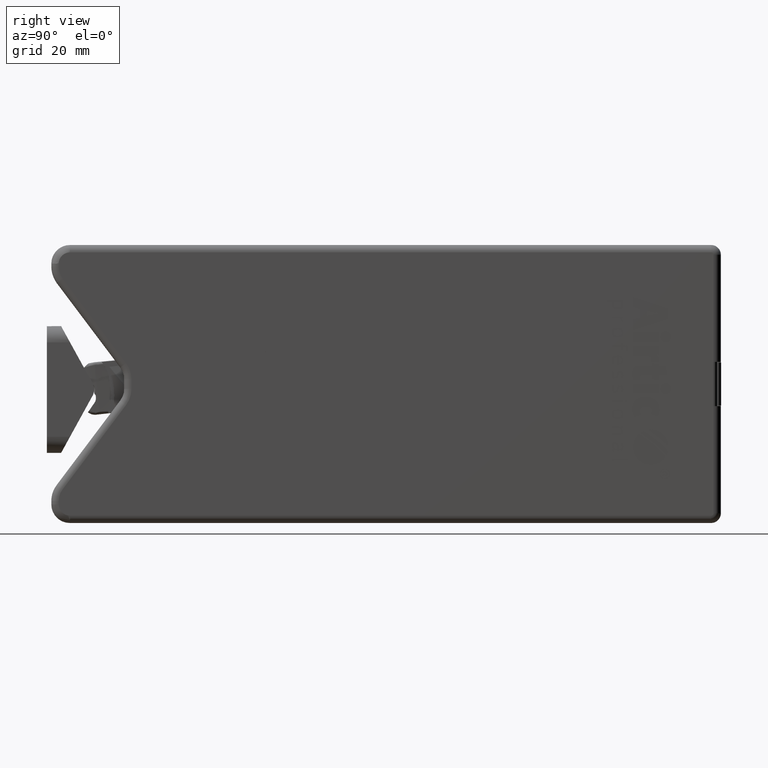
[diagram: clean part render]
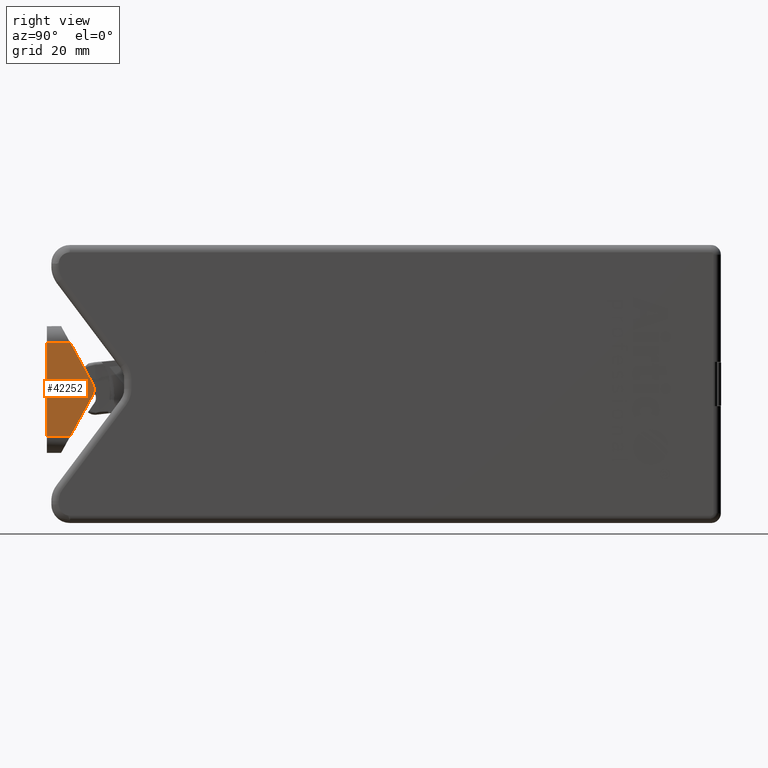
[diagram: same view with one face highlighted and labeled with its STEP entity id]
A machine part, right view. The second image highlights one B-rep face of the part: STEP entity #42252.
In plain terms, the highlighted planar face has unit normal (1, 0, 0).
Its self-contained STEP definition (entity closure, byte-faithful):
#360 = VERTEX_POINT ( 'NONE', #33514 ) ;
#365 = LINE ( 'NONE', #13526, #28740 ) ;
#472 = EDGE_CURVE ( 'NONE', #23064, #65670, #3648, .T. ) ;
#541 = CARTESIAN_POINT ( 'NONE',  ( 5.500000000000124300, 11.39742782418152700, -0.003126835004180813400 ) ) ;
#3648 = CIRCLE ( 'NONE', #57227, 4.601882484524704600 ) ;
#5110 = CARTESIAN_POINT ( 'NONE',  ( 5.500000000000216700, 7.823347925075555800, -16.00312683500418100 ) ) ;
#6251 = DIRECTION ( 'NONE',  ( 1.507838135206943900E-015, -1.000000000000000000, 0.0000000000000000000 ) ) ;
#7362 = VECTOR ( 'NONE', #52702, 1000.000000000000000 ) ;
#7732 = FACE_OUTER_BOUND ( 'NONE', #10658, .T. ) ;
#7830 = CARTESIAN_POINT ( 'NONE',  ( 5.500000000000115500, 15.62790259872204300, 1.808062162133232700 ) ) ;
#8238 = EDGE_CURVE ( 'NONE', #70806, #360, #365, .T. ) ;
#9452 = DIRECTION ( 'NONE',  ( 2.159679775033088400E-015, -0.4819523458311644200, -0.8761974300052686200 ) ) ;
#10658 = EDGE_LOOP ( 'NONE', ( #15135, #26273, #26533, #32026, #16405, #57808 ) ) ;
#12194 = DIRECTION ( 'NONE',  ( 1.590163186312071700E-015, -1.000000000000000000, -2.680237898020961100E-018 ) ) ;
#12919 = VERTEX_POINT ( 'NONE', #5110 ) ;
#13526 = CARTESIAN_POINT ( 'NONE',  ( 5.500000000000143900, 1.647987302177966700E-014, -0.003126835004181789100 ) ) ;
#15135 = ORIENTED_EDGE ( 'NONE', *, *, #8238, .F. ) ;
#16405 = ORIENTED_EDGE ( 'NONE', *, *, #58146, .F. ) ;
#19385 = CARTESIAN_POINT ( 'NONE',  ( 5.500000000000115500, 13.80797361303469600, 5.116723513913368200 ) ) ;
#22683 = VERTEX_POINT ( 'NONE', #44110 ) ;
#23064 = VERTEX_POINT ( 'NONE', #7830 ) ;
#25155 = DIRECTION ( 'NONE',  ( -1.590163186312071500E-015, -1.224646799147378800E-016, 1.000000000000000000 ) ) ;
#25592 = VECTOR ( 'NONE', #33613, 1000.000000000000000 ) ;
#26273 = ORIENTED_EDGE ( 'NONE', *, *, #73227, .F. ) ;
#26533 = ORIENTED_EDGE ( 'NONE', *, *, #42045, .F. ) ;
#28740 = VECTOR ( 'NONE', #25155, 1000.000000000000000 ) ;
#29956 = LINE ( 'NONE', #32278, #45040 ) ;
#32026 = ORIENTED_EDGE ( 'NONE', *, *, #472, .F. ) ;
#32278 = CARTESIAN_POINT ( 'NONE',  ( 5.500000000000129700, 13.80797361303469600, -5.122977183921731700 ) ) ;
#33514 = CARTESIAN_POINT ( 'NONE',  ( 5.500000000000000000, 1.561251128379126400E-014, 15.99687316499582000 ) ) ;
#33613 = DIRECTION ( 'NONE',  ( 1.590163186312071700E-015, -1.000000000000000000, -2.680237898020961100E-018 ) ) ;
#34054 = CARTESIAN_POINT ( 'NONE',  ( 5.500000000000228300, 1.908195823574487800E-014, -16.00312683500418100 ) ) ;
#35852 = CARTESIAN_POINT ( 'NONE',  ( 5.499999999999966200, 21.50000000000365600, 15.99687316499582000 ) ) ;
#37638 = LINE ( 'NONE', #19385, #66005 ) ;
#40215 = DIRECTION ( 'NONE',  ( -1.000000000000000000, -1.590163186312071700E-015, -1.590163186312071700E-015 ) ) ;
#42045 = EDGE_CURVE ( 'NONE', #65670, #12919, #29956, .T. ) ;
#42252 = ADVANCED_FACE ( 'NONE', ( #7732 ), #51606, .T. ) ;
#44110 = CARTESIAN_POINT ( 'NONE',  ( 5.500000000000107500, 7.823347925075550400, 15.99687316499582800 ) ) ;
#45040 = VECTOR ( 'NONE', #9452, 1000.000000000000100 ) ;
#46142 = DIRECTION ( 'NONE',  ( 1.000000000000000000, 1.590163186312071700E-015, 1.590163186312071700E-015 ) ) ;
#51099 = CARTESIAN_POINT ( 'NONE',  ( 5.500000000000120800, 15.62790259872204300, -1.814315832141595500 ) ) ;
#51606 = PLANE ( 'NONE',  #70125 ) ;
#52702 = DIRECTION ( 'NONE',  ( 1.590163186312071700E-015, -1.000000000000000000, -2.680237898020961100E-018 ) ) ;
#54392 = LINE ( 'NONE', #35852, #7362 ) ;
#54634 = EDGE_CURVE ( 'NONE', #22683, #360, #54392, .T. ) ;
#56208 = CARTESIAN_POINT ( 'NONE',  ( 5.500000000000195400, 21.50000000000365600, -16.00312683500418100 ) ) ;
#57227 = AXIS2_PLACEMENT_3D ( 'NONE', #541, #40215, #6251 ) ;
#57808 = ORIENTED_EDGE ( 'NONE', *, *, #54634, .T. ) ;
#58146 = EDGE_CURVE ( 'NONE', #22683, #23064, #37638, .T. ) ;
#63008 = CARTESIAN_POINT ( 'NONE',  ( 5.500000000000136800, 4.500000000007294600, -0.003126835004181247000 ) ) ;
#64743 = DIRECTION ( 'NONE',  ( 6.269140192381645100E-016, 0.4819523458311644200, -0.8761974300052686200 ) ) ;
#65670 = VERTEX_POINT ( 'NONE', #51099 ) ;
#66005 = VECTOR ( 'NONE', #64743, 1000.000000000000100 ) ;
#70125 = AXIS2_PLACEMENT_3D ( 'NONE', #63008, #46142, #12194 ) ;
#70806 = VERTEX_POINT ( 'NONE', #34054 ) ;
#70859 = LINE ( 'NONE', #56208, #25592 ) ;
#73227 = EDGE_CURVE ( 'NONE', #12919, #70806, #70859, .T. ) ;